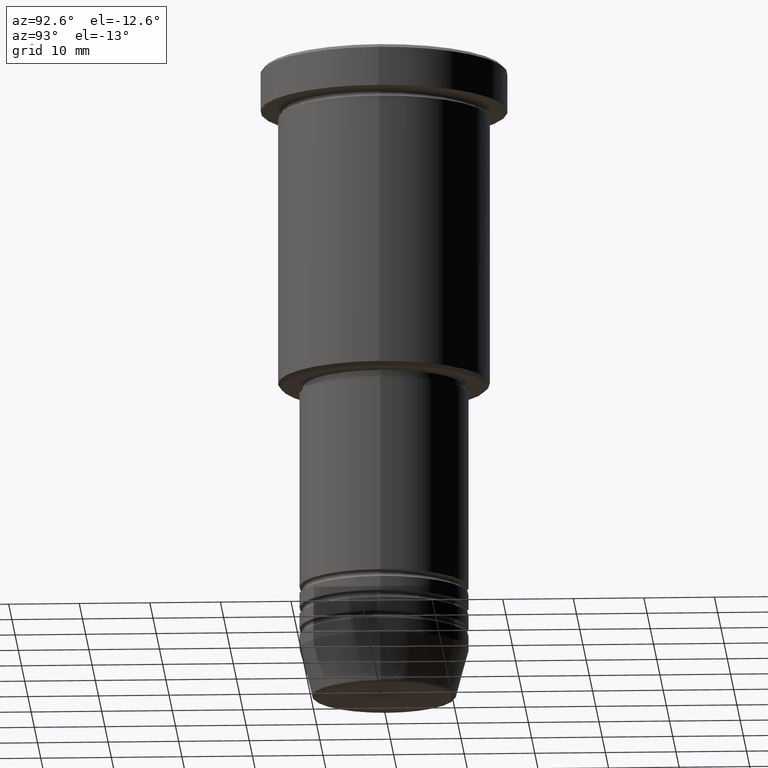
[diagram: clean part render]
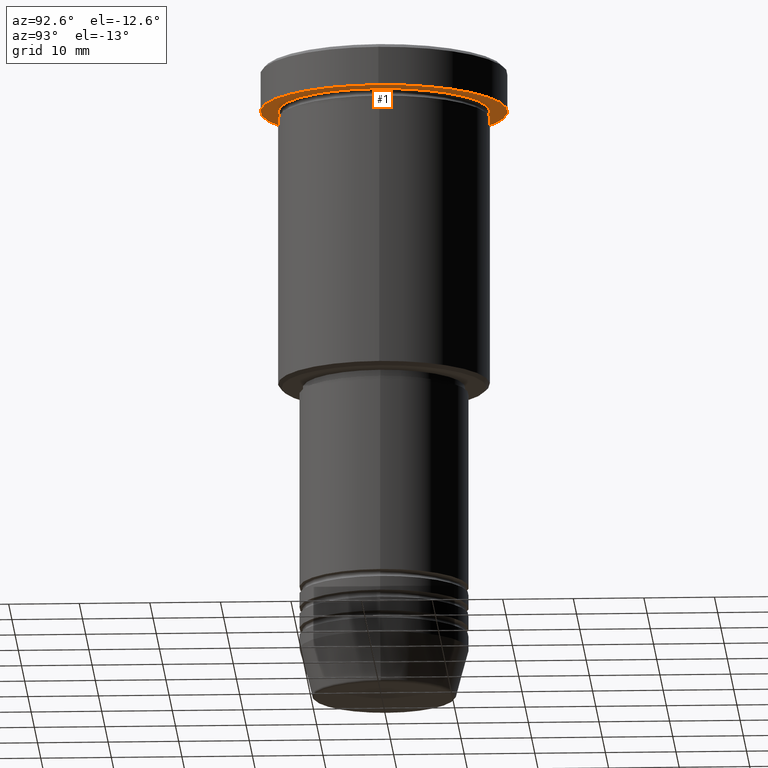
[diagram: same view with one face highlighted and labeled with its STEP entity id]
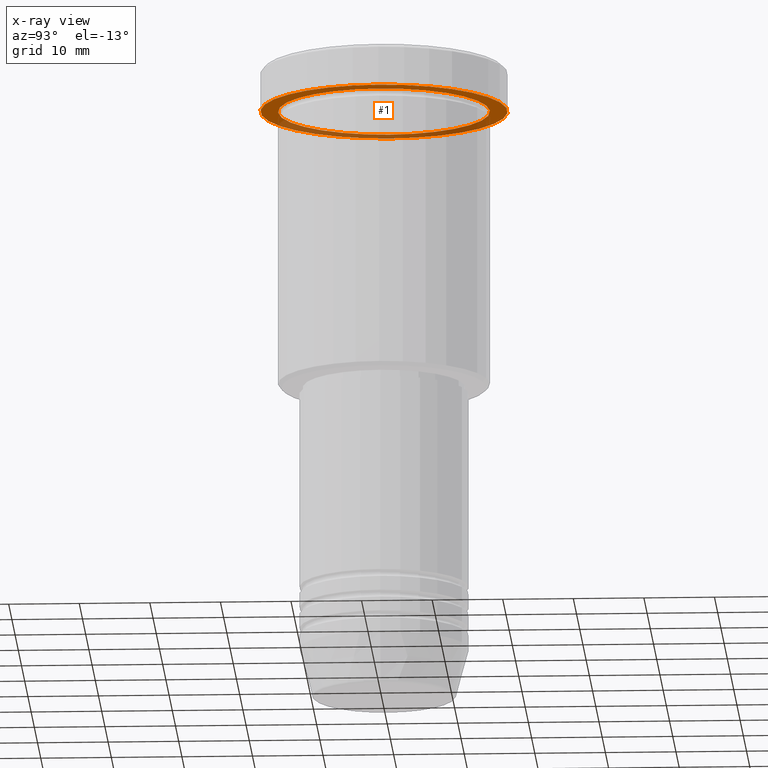
[diagram: x-ray of the same camera — body ghosted, the highlighted face saturated]
A machine part, auxiliary view. The second image highlights one B-rep face of the part: STEP entity #1.
The next image is the same camera in x-ray: the body ghosted, the highlighted face saturated — about 36% of this face is hidden behind the body in this view.
In plain terms, the highlighted planar face has unit normal (0, 0, -1).
Its self-contained STEP definition (entity closure, byte-faithful):
#1 = ADVANCED_FACE ( 'NONE', ( #25, #370 ), #571, .T. ) ;
#21 = EDGE_CURVE ( 'NONE', #167, #546, #101, .T. ) ;
#25 = FACE_BOUND ( 'NONE', #946, .T. ) ;
#36 = EDGE_LOOP ( 'NONE', ( #746, #883 ) ) ;
#94 = DIRECTION ( 'NONE',  ( 0.000000000000000000, 0.000000000000000000, -1.000000000000000000 ) ) ;
#101 = CIRCLE ( 'NONE', #296, 15.00000000000000000 ) ;
#126 = CARTESIAN_POINT ( 'NONE',  ( -17.50000000000000000, 2.143131898507868248E-15, -5.999999999999995559 ) ) ;
#167 = VERTEX_POINT ( 'NONE', #507 ) ;
#176 = AXIS2_PLACEMENT_3D ( 'NONE', #550, #94, #753 ) ;
#278 = DIRECTION ( 'NONE',  ( -0.000000000000000000, -0.000000000000000000, 1.000000000000000000 ) ) ;
#292 = DIRECTION ( 'NONE',  ( -0.000000000000000000, -0.000000000000000000, 1.000000000000000000 ) ) ;
#296 = AXIS2_PLACEMENT_3D ( 'NONE', #744, #278, #731 ) ;
#318 = CIRCLE ( 'NONE', #671, 17.50000000000000000 ) ;
#324 = ORIENTED_EDGE ( 'NONE', *, *, #21, .T. ) ;
#370 = FACE_OUTER_BOUND ( 'NONE', #36, .T. ) ;
#481 = EDGE_CURVE ( 'NONE', #1060, #811, #789, .T. ) ;
#489 = DIRECTION ( 'NONE',  ( -1.000000000000000000, 0.000000000000000000, 0.000000000000000000 ) ) ;
#507 = CARTESIAN_POINT ( 'NONE',  ( 15.00000000000000000, 1.836970198721029589E-15, -5.999999999999994671 ) ) ;
#512 = DIRECTION ( 'NONE',  ( 1.000000000000000000, 0.000000000000000000, 0.000000000000000000 ) ) ;
#546 = VERTEX_POINT ( 'NONE', #1106 ) ;
#550 = CARTESIAN_POINT ( 'NONE',  ( 0.000000000000000000, 17.50000000000000000, -5.999999999999995559 ) ) ;
#566 = CARTESIAN_POINT ( 'NONE',  ( 0.000000000000000000, 0.000000000000000000, -5.999999999999995559 ) ) ;
#571 = PLANE ( 'NONE',  #176 ) ;
#608 = EDGE_CURVE ( 'NONE', #546, #167, #1076, .T. ) ;
#632 = DIRECTION ( 'NONE',  ( 1.000000000000000000, 0.000000000000000000, 0.000000000000000000 ) ) ;
#671 = AXIS2_PLACEMENT_3D ( 'NONE', #1057, #878, #512 ) ;
#716 = CARTESIAN_POINT ( 'NONE',  ( 17.50000000000000000, 0.000000000000000000, -5.999999999999995559 ) ) ;
#731 = DIRECTION ( 'NONE',  ( -1.000000000000000000, 0.000000000000000000, 0.000000000000000000 ) ) ;
#744 = CARTESIAN_POINT ( 'NONE',  ( 0.000000000000000000, 0.000000000000000000, -5.999999999999995559 ) ) ;
#746 = ORIENTED_EDGE ( 'NONE', *, *, #819, .F. ) ;
#753 = DIRECTION ( 'NONE',  ( -1.000000000000000000, 0.000000000000000000, -0.000000000000000000 ) ) ;
#789 = CIRCLE ( 'NONE', #877, 17.50000000000000000 ) ;
#809 = AXIS2_PLACEMENT_3D ( 'NONE', #941, #292, #489 ) ;
#811 = VERTEX_POINT ( 'NONE', #716 ) ;
#819 = EDGE_CURVE ( 'NONE', #811, #1060, #318, .T. ) ;
#877 = AXIS2_PLACEMENT_3D ( 'NONE', #566, #1103, #632 ) ;
#878 = DIRECTION ( 'NONE',  ( -0.000000000000000000, -0.000000000000000000, 1.000000000000000000 ) ) ;
#883 = ORIENTED_EDGE ( 'NONE', *, *, #481, .F. ) ;
#941 = CARTESIAN_POINT ( 'NONE',  ( 0.000000000000000000, 0.000000000000000000, -5.999999999999995559 ) ) ;
#946 = EDGE_LOOP ( 'NONE', ( #1045, #324 ) ) ;
#1045 = ORIENTED_EDGE ( 'NONE', *, *, #608, .T. ) ;
#1057 = CARTESIAN_POINT ( 'NONE',  ( 0.000000000000000000, 0.000000000000000000, -5.999999999999995559 ) ) ;
#1060 = VERTEX_POINT ( 'NONE', #126 ) ;
#1076 = CIRCLE ( 'NONE', #809, 15.00000000000000000 ) ;
#1103 = DIRECTION ( 'NONE',  ( -0.000000000000000000, -0.000000000000000000, 1.000000000000000000 ) ) ;
#1106 = CARTESIAN_POINT ( 'NONE',  ( -15.00000000000000000, 0.000000000000000000, -5.999999999999994671 ) ) ;